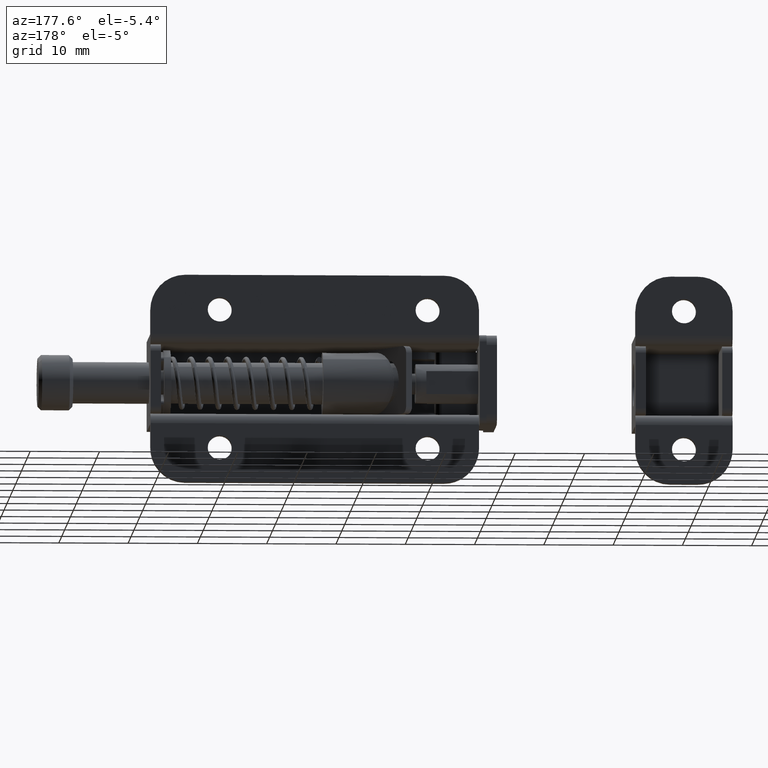
[diagram: clean part render]
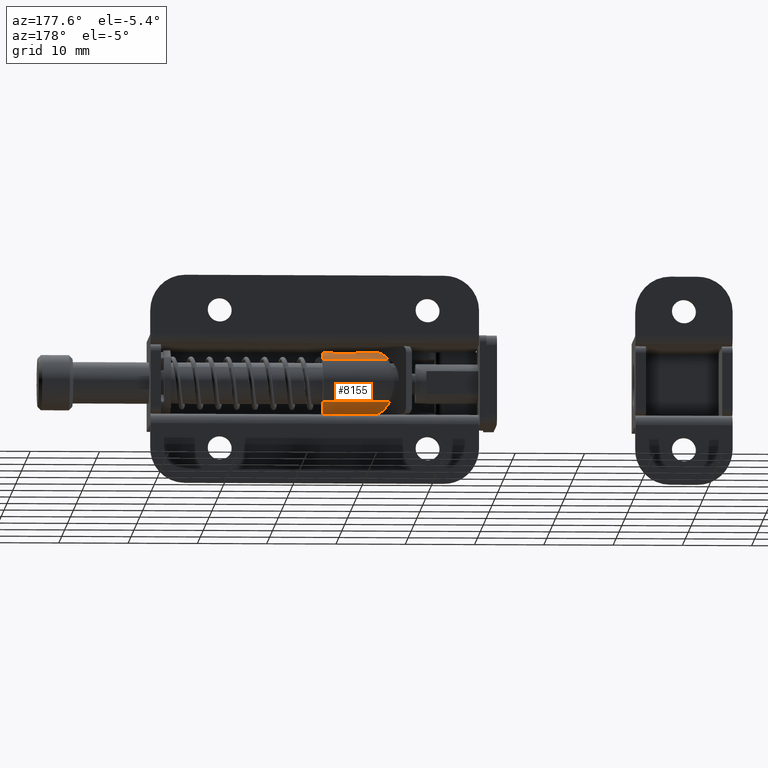
[diagram: same view with one face highlighted and labeled with its STEP entity id]
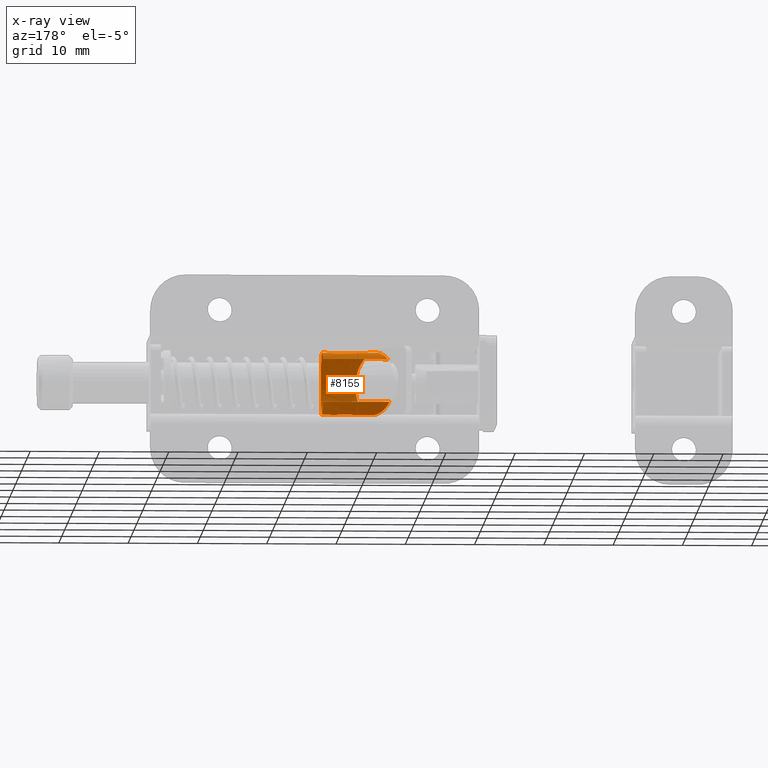
[diagram: x-ray of the same camera — body ghosted, the highlighted face saturated]
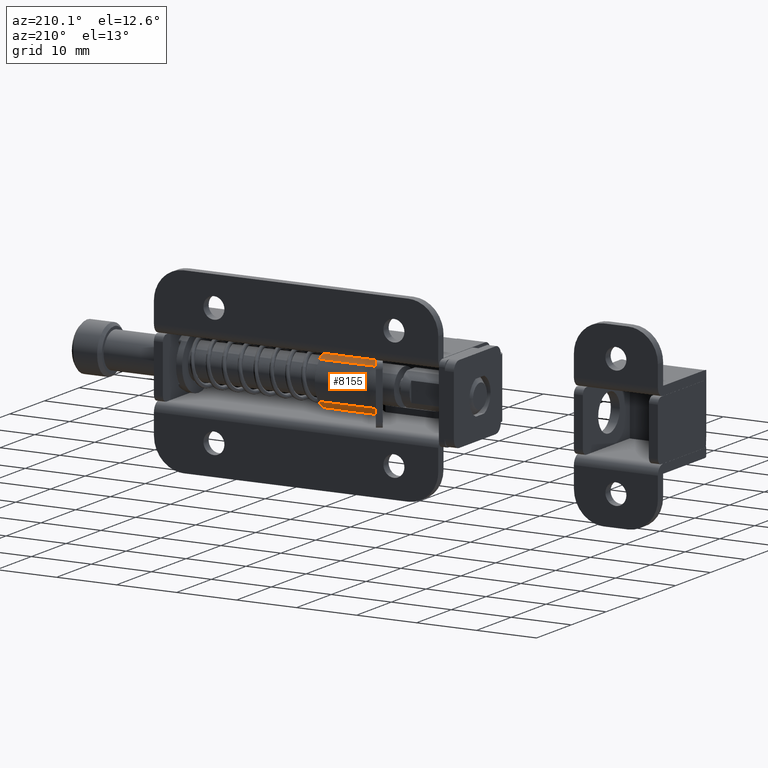
[diagram: same view with one face highlighted and labeled with its STEP entity id]
A machine part, auxiliary view. The second image highlights one B-rep face of the part: STEP entity #8155.
The next image is the same camera in x-ray: the body ghosted, the highlighted face saturated — about 0% of this face is hidden behind the body in this view.
A second angle (auxiliary view) of the same face is appended — the face is thin or edge-on in the first view.
In plain terms, the highlighted face is a freeform B-spline surface patch.
Its self-contained STEP definition (entity closure, byte-faithful):
#8024=CARTESIAN_POINT('',(25.202223250267362,3.436000344733252,-2.905839230066414));
#8025=CARTESIAN_POINT('',(25.202223250267355,3.352836498671004,-3.004176055029953));
#8026=CARTESIAN_POINT('',(25.202223250267352,3.264184669555293,-3.097595590621892));
#8027=CARTESIAN_POINT('',(25.202223250267355,0.166589078933401,-6.361780260177186));
#8028=CARTESIAN_POINT('',(25.202223250267352,-3.097595590621892,-3.264184669555293));
#8029=CARTESIAN_POINT('',(25.202223250267355,-6.361780260177186,-0.166589078933401));
#8030=CARTESIAN_POINT('',(25.202223250267352,-3.264184669555293,3.097595590621892));
#8031=CARTESIAN_POINT('',(25.202223250267355,-0.166589078933401,6.361780260177186));
#8032=CARTESIAN_POINT('',(25.202223250267352,3.097595590621892,3.264184669555293));
#8033=CARTESIAN_POINT('',(14.883195729121629,3.436000344733252,-2.905839230066414));
#8034=CARTESIAN_POINT('',(14.883195729121622,3.352836498671004,-3.004176055029953));
#8035=CARTESIAN_POINT('',(14.883195729121621,3.264184669555293,-3.097595590621892));
#8036=CARTESIAN_POINT('',(14.883195729121621,0.166589078933401,-6.361780260177184));
#8037=CARTESIAN_POINT('',(14.883195729121621,-3.097595590621892,-3.264184669555293));
#8038=CARTESIAN_POINT('',(14.883195729121621,-6.361780260177184,-0.166589078933401));
#8039=CARTESIAN_POINT('',(14.883195729121621,-3.264184669555293,3.097595590621892));
#8040=CARTESIAN_POINT('',(14.883195729121621,-0.166589078933401,6.361780260177184));
#8041=CARTESIAN_POINT('',(14.883195729121621,3.097595590621892,3.264184669555293));
#8049=(BOUNDED_SURFACE()B_SPLINE_SURFACE(2,1,((#8024,#8033),(#8025,#8034),(#8026,#8035),(#8027,#8036),(#8028,#8037),(#8029,#8038),(#8030,#8039),(#8031,#8040),(#8032,#8041)),.UNSPECIFIED.,.F.,.F.,.U.)B_SPLINE_SURFACE_WITH_KNOTS((3,2,2,2,3),(2,2),(0.0,0.298233678896254,7.754077801611962,15.209921924327670,22.665766047043380),(0.0,10.319027521145729),.UNSPECIFIED.)GEOMETRIC_REPRESENTATION_ITEM()RATIONAL_B_SPLINE_SURFACE(((0.977505807012276,0.977505807012276),(0.988284274626347,0.988284274626347),(1.0,1.0),(0.707106781186548,0.707106781186548),(1.0,1.0),(0.707106781186548,0.707106781186548),(1.0,1.0),(0.707106781186548,0.707106781186548),(1.0,1.0)))REPRESENTATION_ITEM('')SURFACE());
#8050=CARTESIAN_POINT('',(24.947223250267349,3.436000555169907,-2.905839286921196));
#8051=VERTEX_POINT('',#8050);
#8052=CARTESIAN_POINT('',(24.947223250267349,0.0,-4.500000000000000));
#8053=VERTEX_POINT('',#8052);
#8054=CARTESIAN_POINT('',(24.947223250267349,3.436000555169907,-2.905839286921196));
#8055=CARTESIAN_POINT('',(24.947223250267321,3.133734926649329,-3.263619230715833));
#8056=CARTESIAN_POINT('',(24.947223250267420,2.556502361479293,-3.761959952919168));
#8057=CARTESIAN_POINT('',(24.947223250267260,1.713984140361249,-4.180902131805208));
#8058=CARTESIAN_POINT('',(24.947223250267481,0.916270676592256,-4.432424476672211));
#8059=CARTESIAN_POINT('',(24.947223250267371,0.366539525882027,-4.500103501044713));
#8060=CARTESIAN_POINT('',(24.947223250267349,0.0,-4.500000000000000));
#8061=B_SPLINE_CURVE_WITH_KNOTS('',3,(#8054,#8055,#8056,#8057,#8058,#8059,#8060),.UNSPECIFIED.,.F.,.U.,(4,1,1,1,4),(0.000000025644501,1.405027417302826,2.260255443092336,2.810051304219188,3.909637423051153),.UNSPECIFIED.);
#8062=EDGE_CURVE('',#8051,#8053,#8061,.T.);
#8063=ORIENTED_EDGE('',*,*,#8062,.T.);
#8064=CARTESIAN_POINT('',(24.947223250267349,-4.499999999999928,0.000000800688151));
#8065=VERTEX_POINT('',#8064);
#8066=CARTESIAN_POINT('',(24.947223250267349,0.0,-4.500000000000000));
#8067=CARTESIAN_POINT('',(24.947223250267339,-0.257709924260816,-4.500020348694175));
#8068=CARTESIAN_POINT('',(24.947223250267360,-0.773113064859328,-4.455592512358251));
#8069=CARTESIAN_POINT('',(24.947223250267388,-1.648590055794584,-4.224977450492827));
#8070=CARTESIAN_POINT('',(24.947223250267349,-2.458411613809092,-3.811056340329172));
#8071=CARTESIAN_POINT('',(24.947223250267040,-3.186774290400171,-3.213232103635825));
#8072=CARTESIAN_POINT('',(24.947223250267839,-3.663109539906801,-2.647112281258492));
#8073=CARTESIAN_POINT('',(24.947223250266930,-4.042335983081893,-2.014360823641484));
#8074=CARTESIAN_POINT('',(24.947223250267790,-4.388890602159520,-1.177981174499245));
#8075=CARTESIAN_POINT('',(24.947223250267399,-4.500221819606724,-0.460223344809602));
#8076=CARTESIAN_POINT('',(24.947223250267349,-4.499999999999928,0.000000800688151));
#8077=B_SPLINE_CURVE_WITH_KNOTS('',3,(#8066,#8067,#8068,#8069,#8070,#8071,#8072,#8073,#8074,#8075,#8076),.UNSPECIFIED.,.F.,.U.,(4,1,1,1,1,1,1,1,4),(0.000000078851022,0.773130785943533,1.546262091059191,2.705963187156137,3.479113674298532,4.362662197631225,4.914904705401671,5.688037743947797,7.068628274225456),.UNSPECIFIED.);
#8078=EDGE_CURVE('',#8053,#8065,#8077,.T.);
#8079=ORIENTED_EDGE('',*,*,#8078,.T.);
#8080=CARTESIAN_POINT('',(24.947223250267349,0.0,4.500000000000000));
#8081=VERTEX_POINT('',#8080);
#8082=CARTESIAN_POINT('',(24.947223250267349,-4.499999999999928,0.000000800688151));
#8083=CARTESIAN_POINT('',(24.947223250267349,-4.500022029257536,0.257710659943909));
#8084=CARTESIAN_POINT('',(24.947223250267331,-4.455595840757665,0.773118333313321));
#8085=CARTESIAN_POINT('',(24.947223250267360,-4.234353506744766,1.612835491017135));
#8086=CARTESIAN_POINT('',(24.947223250267371,-3.831035720504088,2.426495452188062));
#8087=CARTESIAN_POINT('',(24.947223250267442,-3.287756016075681,3.105176894439636));
#8088=CARTESIAN_POINT('',(24.947223250267228,-2.624078971707915,3.692104341858215));
#8089=CARTESIAN_POINT('',(24.947223250267509,-1.822909402477335,4.159092065179578));
#8090=CARTESIAN_POINT('',(24.947223250267619,-0.883568057950340,4.443936340376602));
#8091=CARTESIAN_POINT('',(24.947223250266880,-0.276114459829597,4.500023780006594));
#8092=CARTESIAN_POINT('',(24.947223250267349,0.0,4.500000000000000));
#8093=B_SPLINE_CURVE_WITH_KNOTS('',3,(#8082,#8083,#8084,#8085,#8086,#8087,#8088,#8089,#8090,#8091,#8092),.UNSPECIFIED.,.F.,.U.,(4,1,1,1,1,1,1,1,4),(0.000000079128814,0.773130687342428,1.546261893794201,2.595526200767459,3.479113230854539,4.141772239287349,5.246246195804639,6.240279454507758,7.068627371657634),.UNSPECIFIED.);
#8094=EDGE_CURVE('',#8065,#8081,#8093,.T.);
#8095=ORIENTED_EDGE('',*,*,#8094,.T.);
#8096=CARTESIAN_POINT('',(24.947223250267349,3.097595500043509,3.264184479932291));
#8097=VERTEX_POINT('',#8096);
#8098=CARTESIAN_POINT('',(24.947223250267349,0.0,4.500000000000000));
#8099=CARTESIAN_POINT('',(24.947223250267289,0.462685544521417,4.500240904782611));
#8100=CARTESIAN_POINT('',(24.947223250267569,1.192078749931124,4.386439911792776));
#8101=CARTESIAN_POINT('',(24.947223250267069,2.246326906562525,3.943896172633298));
#8102=CARTESIAN_POINT('',(24.947223250267498,2.800816596389073,3.546029374763546));
#8103=CARTESIAN_POINT('',(24.947223250267349,3.097595500043509,3.264184479932291));
#8104=B_SPLINE_CURVE_WITH_KNOTS('',3,(#8098,#8099,#8100,#8101,#8102,#8103),.UNSPECIFIED.,.F.,.U.,(4,1,1,4),(0.000000020559767,1.387958536951593,2.188692333750254,3.416502031434697),.UNSPECIFIED.);
#8105=EDGE_CURVE('',#8081,#8097,#8104,.T.);
#8106=ORIENTED_EDGE('',*,*,#8105,.T.);
#8107=CARTESIAN_POINT('',(15.557501353459269,3.097595590625608,3.264184669551768));
#8108=VERTEX_POINT('',#8107);
#8109=CARTESIAN_POINT('',(24.947223250267349,3.097595500043509,3.264184479932291));
#8110=CARTESIAN_POINT('',(15.557501353459269,3.097595590625608,3.264184669551768));
#8111=QUASI_UNIFORM_CURVE('',1,(#8109,#8110),.UNSPECIFIED.,.F.,.U.);
#8112=EDGE_CURVE('',#8097,#8108,#8111,.T.);
#8113=ORIENTED_EDGE('',*,*,#8112,.T.);
#8114=CARTESIAN_POINT('',(19.947223250267388,-4.500000000000002,5.510729E-016));
#8115=VERTEX_POINT('',#8114);
#8116=CARTESIAN_POINT('',(15.557501353459271,3.097595590625607,3.264184669551769));
#8117=CARTESIAN_POINT('',(16.309928430732299,1.795317956887676,4.500000000000001));
#8118=CARTESIAN_POINT('',(17.347223250267401,2.755364E-016,4.500000000000000));
#8119=CARTESIAN_POINT('',(19.947223250267388,-4.500000000000002,4.500000000000001));
#8120=CARTESIAN_POINT('',(19.947223250267388,-4.500000000000002,5.510729E-016));
#8128=(BOUNDED_CURVE()B_SPLINE_CURVE(2,(#8116,#8117,#8118,#8119,#8120),.UNSPECIFIED.,.F.,.U.)B_SPLINE_CURVE_WITH_KNOTS((3,2,3),(0.128950473340581,0.250000000000000,0.500000000000000),.UNSPECIFIED.)CURVE()GEOMETRIC_REPRESENTATION_ITEM()RATIONAL_B_SPLINE_CURVE((0.853699661369411,0.858181658003512,1.0,0.707106781186547,1.0))REPRESENTATION_ITEM(''));
#8129=EDGE_CURVE('',#8108,#8115,#8128,.T.);
#8130=ORIENTED_EDGE('',*,*,#8129,.T.);
#8131=CARTESIAN_POINT('',(15.361978578637549,3.436000393217946,-2.905839172735840));
#8132=VERTEX_POINT('',#8131);
#8133=CARTESIAN_POINT('',(19.947223250267388,-4.500000000000002,5.510729E-016));
#8134=CARTESIAN_POINT('',(19.947223250267388,-4.500000000000002,-4.500000000000001));
#8135=CARTESIAN_POINT('',(17.347223250267401,-8.266093E-016,-4.500000000000000));
#8136=CARTESIAN_POINT('',(16.140931726249686,2.087812253107594,-4.500000000000000));
#8137=CARTESIAN_POINT('',(15.361978578637551,3.436000393217946,-2.905839172735841));
#8145=(BOUNDED_CURVE()B_SPLINE_CURVE(2,(#8133,#8134,#8135,#8136,#8137),.UNSPECIFIED.,.F.,.U.)B_SPLINE_CURVE_WITH_KNOTS((3,2,3),(0.500000000000000,0.750000000000000,0.887591910274789),.UNSPECIFIED.)CURVE()GEOMETRIC_REPRESENTATION_ITEM()RATIONAL_B_SPLINE_CURVE((1.0,0.707106781186547,1.0,0.838801050067701,0.855039471779203))REPRESENTATION_ITEM(''));
#8146=EDGE_CURVE('',#8115,#8132,#8145,.T.);
#8147=ORIENTED_EDGE('',*,*,#8146,.T.);
#8148=CARTESIAN_POINT('',(24.947223250267349,3.436000555169907,-2.905839286921196));
#8149=CARTESIAN_POINT('',(15.361978578637549,3.436000393217946,-2.905839172735840));
#8150=QUASI_UNIFORM_CURVE('',1,(#8148,#8149),.UNSPECIFIED.,.F.,.U.);
#8151=EDGE_CURVE('',#8051,#8132,#8150,.T.);
#8152=ORIENTED_EDGE('',*,*,#8151,.F.);
#8153=EDGE_LOOP('',(#8063,#8079,#8095,#8106,#8113,#8130,#8147,#8152));
#8154=FACE_OUTER_BOUND('',#8153,.T.);
#8155=ADVANCED_FACE('',(#8154),#8049,.T.);